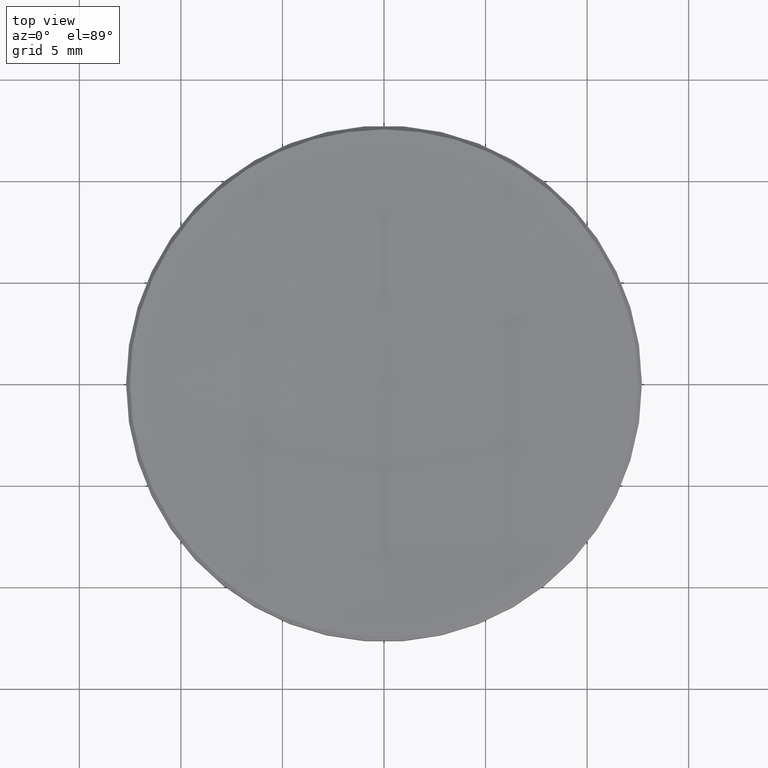
[diagram: clean part render]
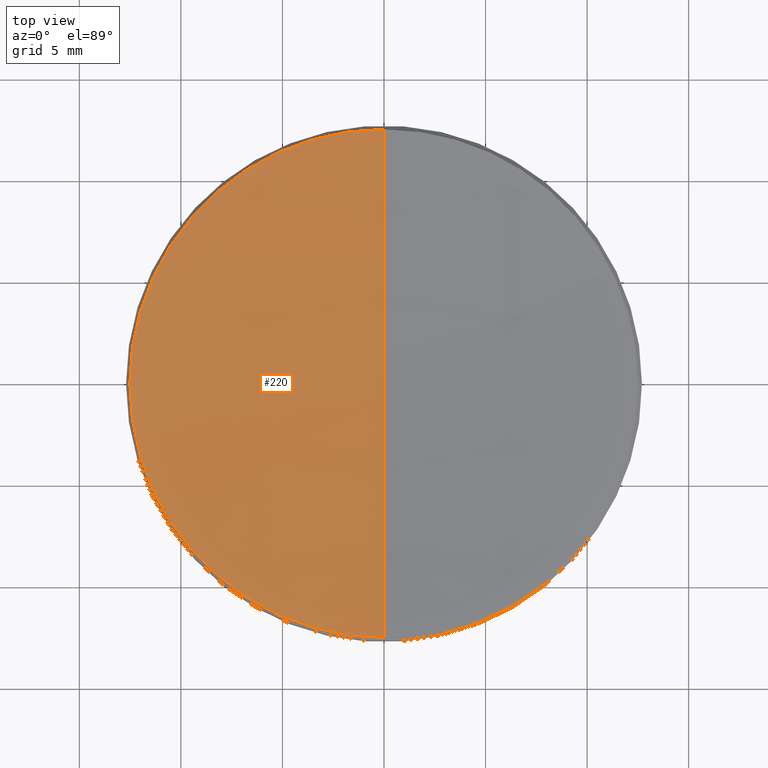
[diagram: same view with one face highlighted and labeled with its STEP entity id]
A machine part, top view. The second image highlights one B-rep face of the part: STEP entity #220.
In plain terms, the highlighted spherical surface has radius 182.19 mm.
Its self-contained STEP definition (entity closure, byte-faithful):
#1 = SPHERICAL_SURFACE ( 'NONE', #135, 182.1899999999999977 ) ;
#16 = ORIENTED_EDGE ( 'NONE', *, *, #57, .T. ) ;
#17 = CARTESIAN_POINT ( 'NONE',  ( -1.532397149842306047E-15, -12.51297231911454411, 5.987027680885187664 ) ) ;
#28 = DIRECTION ( 'NONE',  ( 0.000000000000000000, 1.000000000000000000, 0.000000000000000000 ) ) ;
#32 = CIRCLE ( 'NONE', #254, 12.51297231911478569 ) ;
#48 = VERTEX_POINT ( 'NONE', #65 ) ;
#57 = EDGE_CURVE ( 'NONE', #139, #115, #32, .T. ) ;
#60 = EDGE_CURVE ( 'NONE', #48, #139, #110, .T. ) ;
#65 = CARTESIAN_POINT ( 'NONE',  ( 0.000000000000000000, 12.51297231911454411, 5.987027680885187664 ) ) ;
#79 = ORIENTED_EDGE ( 'NONE', *, *, #116, .F. ) ;
#81 = ORIENTED_EDGE ( 'NONE', *, *, #301, .T. ) ;
#87 = DIRECTION ( 'NONE',  ( 1.000000000000000000, 0.000000000000000000, 0.000000000000000000 ) ) ;
#110 = CIRCLE ( 'NONE', #294, 12.51297231911478569 ) ;
#115 = VERTEX_POINT ( 'NONE', #17 ) ;
#116 = EDGE_CURVE ( 'NONE', #256, #115, #155, .T. ) ;
#118 = DIRECTION ( 'NONE',  ( -0.000000000000000000, -0.000000000000000000, 1.000000000000000000 ) ) ;
#125 = DIRECTION ( 'NONE',  ( 1.000000000000000000, 0.000000000000000000, 0.000000000000000000 ) ) ;
#135 = AXIS2_PLACEMENT_3D ( 'NONE', #311, #260, #28 ) ;
#139 = VERTEX_POINT ( 'NONE', #222 ) ;
#143 = DIRECTION ( 'NONE',  ( -0.000000000000000000, -0.000000000000000000, 1.000000000000000000 ) ) ;
#155 = CIRCLE ( 'NONE', #327, 182.1899999999999977 ) ;
#156 = ORIENTED_EDGE ( 'NONE', *, *, #60, .T. ) ;
#162 = CARTESIAN_POINT ( 'NONE',  ( 0.000000000000000000, 0.000000000000000000, 187.7468186791724918 ) ) ;
#167 = EDGE_LOOP ( 'NONE', ( #79, #81, #156, #16 ) ) ;
#169 = CARTESIAN_POINT ( 'NONE',  ( 0.000000000000000000, 0.000000000000000000, 5.987027680885187664 ) ) ;
#177 = CARTESIAN_POINT ( 'NONE',  ( 0.000000000000000000, 0.000000000000000000, 5.987027680885187664 ) ) ;
#214 = FACE_OUTER_BOUND ( 'NONE', #167, .T. ) ;
#219 = AXIS2_PLACEMENT_3D ( 'NONE', #162, #87, #305 ) ;
#220 = ADVANCED_FACE ( 'NONE', ( #214 ), #1, .F. ) ;
#222 = CARTESIAN_POINT ( 'NONE',  ( -12.51297231911478569, 0.000000000000000000, 5.987027680885187664 ) ) ;
#254 = AXIS2_PLACEMENT_3D ( 'NONE', #177, #143, #125 ) ;
#256 = VERTEX_POINT ( 'NONE', #316 ) ;
#260 = DIRECTION ( 'NONE',  ( -1.000000000000000000, 0.000000000000000000, 0.000000000000000000 ) ) ;
#273 = DIRECTION ( 'NONE',  ( -1.224646799147352961E-16, -1.000000000000000000, 0.000000000000000000 ) ) ;
#275 = DIRECTION ( 'NONE',  ( -1.000000000000000000, 1.224646799147353207E-16, 0.000000000000000000 ) ) ;
#276 = DIRECTION ( 'NONE',  ( 1.000000000000000000, 0.000000000000000000, 0.000000000000000000 ) ) ;
#294 = AXIS2_PLACEMENT_3D ( 'NONE', #169, #118, #276 ) ;
#301 = EDGE_CURVE ( 'NONE', #256, #48, #328, .T. ) ;
#305 = DIRECTION ( 'NONE',  ( 0.000000000000000000, 0.000000000000000000, -1.000000000000000000 ) ) ;
#311 = CARTESIAN_POINT ( 'NONE',  ( 0.000000000000000000, 0.000000000000000000, 187.7468186791724918 ) ) ;
#316 = CARTESIAN_POINT ( 'NONE',  ( 0.000000000000000000, 1.115592001683281265E-14, 5.556818679172486952 ) ) ;
#319 = CARTESIAN_POINT ( 'NONE',  ( 0.000000000000000000, 0.000000000000000000, 187.7468186791724918 ) ) ;
#327 = AXIS2_PLACEMENT_3D ( 'NONE', #319, #275, #273 ) ;
#328 = CIRCLE ( 'NONE', #219, 182.1899999999999977 ) ;